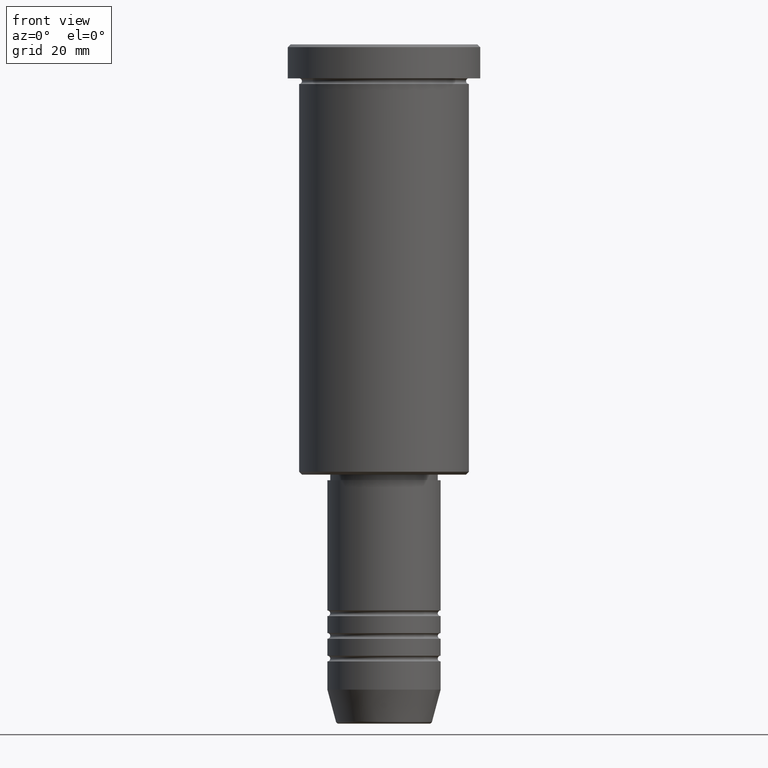
[diagram: clean part render]
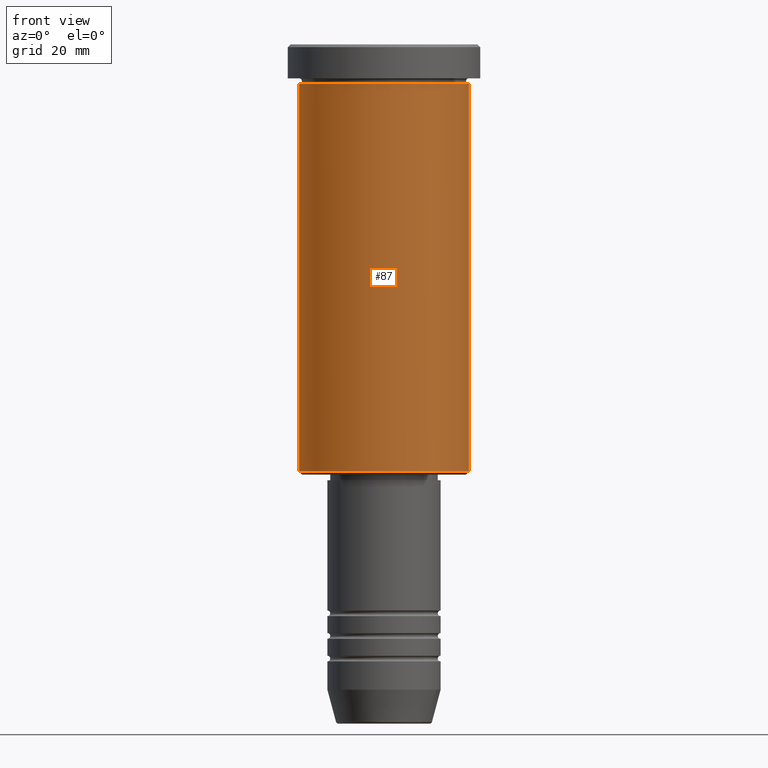
[diagram: same view with one face highlighted and labeled with its STEP entity id]
A machine part, front view. The second image highlights one B-rep face of the part: STEP entity #87.
In plain terms, the highlighted cylindrical surface (partial cylindrical patch) has radius 15 mm, axis along (-0, -0, 1).
Its self-contained STEP definition (entity closure, byte-faithful):
#70 = DIRECTION ( 'NONE',  ( -0.000000000000000000, -0.000000000000000000, 1.000000000000000000 ) ) ;
#87 = ADVANCED_FACE ( 'NONE', ( #593 ), #706, .T. ) ;
#89 = EDGE_CURVE ( 'NONE', #130, #343, #739, .T. ) ;
#130 = VERTEX_POINT ( 'NONE', #949 ) ;
#134 = DIRECTION ( 'NONE',  ( -0.000000000000000000, -0.000000000000000000, 1.000000000000000000 ) ) ;
#173 = ORIENTED_EDGE ( 'NONE', *, *, #89, .F. ) ;
#211 = AXIS2_PLACEMENT_3D ( 'NONE', #529, #134, #608 ) ;
#246 = DIRECTION ( 'NONE',  ( 1.000000000000000000, 0.000000000000000000, 0.000000000000000000 ) ) ;
#247 = LINE ( 'NONE', #970, #960 ) ;
#253 = AXIS2_PLACEMENT_3D ( 'NONE', #1061, #702, #246 ) ;
#264 = EDGE_LOOP ( 'NONE', ( #622, #331, #708, #173 ) ) ;
#272 = AXIS2_PLACEMENT_3D ( 'NONE', #609, #70, #727 ) ;
#306 = VECTOR ( 'NONE', #991, 1000.000000000000000 ) ;
#331 = ORIENTED_EDGE ( 'NONE', *, *, #1123, .T. ) ;
#343 = VERTEX_POINT ( 'NONE', #793 ) ;
#413 = CIRCLE ( 'NONE', #272, 15.00000000000000000 ) ;
#529 = CARTESIAN_POINT ( 'NONE',  ( 0.000000000000000000, 0.000000000000000000, -6.999999999999995559 ) ) ;
#544 = DIRECTION ( 'NONE',  ( -0.000000000000000000, -0.000000000000000000, 1.000000000000000000 ) ) ;
#593 = FACE_OUTER_BOUND ( 'NONE', #264, .T. ) ;
#608 = DIRECTION ( 'NONE',  ( 1.000000000000000000, 0.000000000000000000, 0.000000000000000000 ) ) ;
#609 = CARTESIAN_POINT ( 'NONE',  ( 0.000000000000000000, 0.000000000000000000, -75.49999999999998579 ) ) ;
#622 = ORIENTED_EDGE ( 'NONE', *, *, #1146, .F. ) ;
#664 = CARTESIAN_POINT ( 'NONE',  ( -15.00000000000000000, 1.836970198721029589E-15, -75.49999999999998579 ) ) ;
#702 = DIRECTION ( 'NONE',  ( -0.000000000000000000, -0.000000000000000000, 1.000000000000000000 ) ) ;
#706 = CYLINDRICAL_SURFACE ( 'NONE', #253, 15.00000000000000000 ) ;
#708 = ORIENTED_EDGE ( 'NONE', *, *, #1103, .T. ) ;
#711 = LINE ( 'NONE', #1149, #306 ) ;
#727 = DIRECTION ( 'NONE',  ( -1.000000000000000000, 0.000000000000000000, 0.000000000000000000 ) ) ;
#739 = CIRCLE ( 'NONE', #211, 15.00000000000000000 ) ;
#748 = VERTEX_POINT ( 'NONE', #839 ) ;
#793 = CARTESIAN_POINT ( 'NONE',  ( 15.00000000000000000, 0.000000000000000000, -6.999999999999995559 ) ) ;
#839 = CARTESIAN_POINT ( 'NONE',  ( 15.00000000000000000, 0.000000000000000000, -75.49999999999998579 ) ) ;
#949 = CARTESIAN_POINT ( 'NONE',  ( -15.00000000000000000, 1.836970198721029589E-15, -6.999999999999995559 ) ) ;
#960 = VECTOR ( 'NONE', #544, 1000.000000000000000 ) ;
#970 = CARTESIAN_POINT ( 'NONE',  ( -15.00000000000000000, 1.836970198721029589E-15, 0.000000000000000000 ) ) ;
#971 = VERTEX_POINT ( 'NONE', #664 ) ;
#991 = DIRECTION ( 'NONE',  ( -0.000000000000000000, -0.000000000000000000, 1.000000000000000000 ) ) ;
#1061 = CARTESIAN_POINT ( 'NONE',  ( 0.000000000000000000, 0.000000000000000000, 0.000000000000000000 ) ) ;
#1103 = EDGE_CURVE ( 'NONE', #748, #343, #711, .T. ) ;
#1123 = EDGE_CURVE ( 'NONE', #971, #748, #413, .T. ) ;
#1146 = EDGE_CURVE ( 'NONE', #971, #130, #247, .T. ) ;
#1149 = CARTESIAN_POINT ( 'NONE',  ( 15.00000000000000000, 0.000000000000000000, 0.000000000000000000 ) ) ;